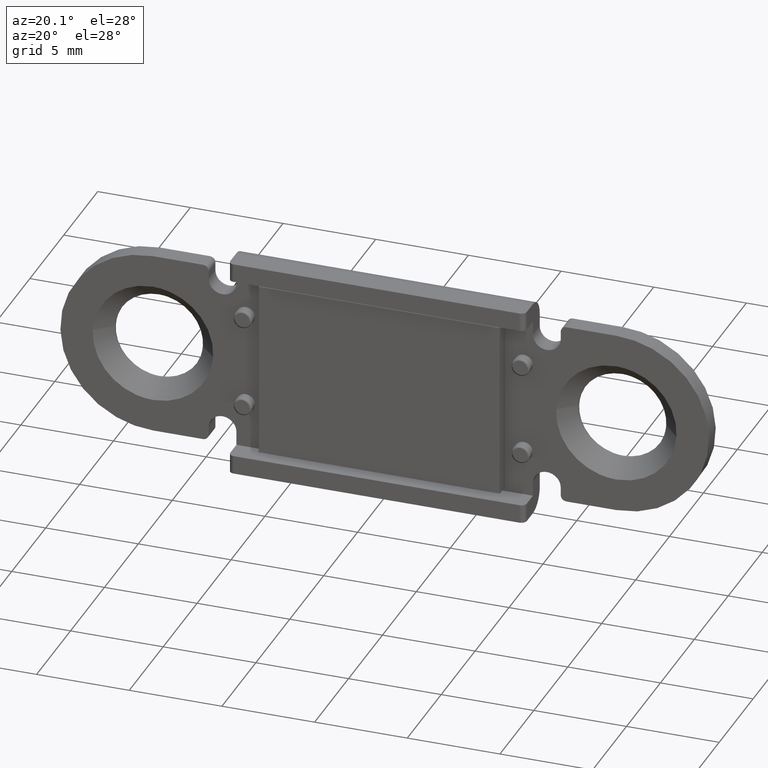
[diagram: clean part render]
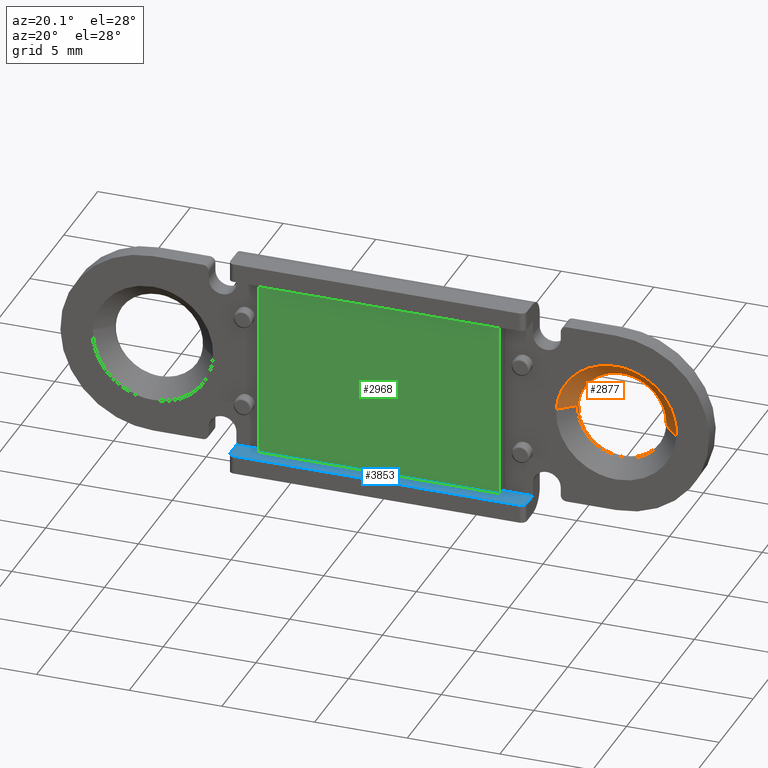
[diagram: same view with three faces highlighted in distinct colors, each labeled with its STEP entity id]
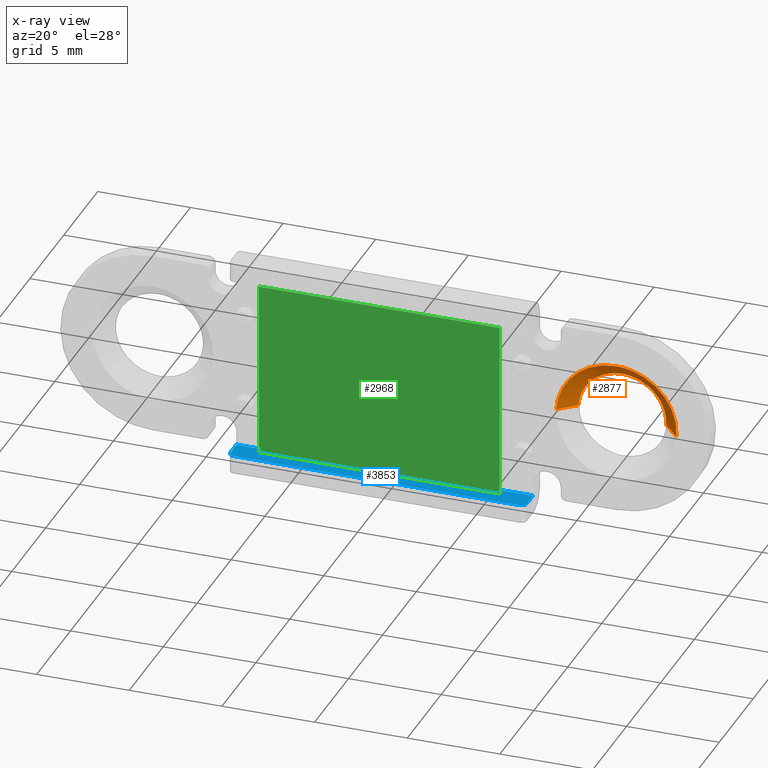
[diagram: x-ray of the same camera — body ghosted, the three highlighted faces saturated]
A machine part, auxiliary view with three faces highlighted in distinct colors.
The next image is the same camera in x-ray (body ghosted, the three faces saturated) — at least one of them is partly hidden behind the body in this view.
Their STEP definitions:

[orange] entity #2877 — the highlighted face is a freeform B-spline surface patch.
#2649=CARTESIAN_POINT('',(14.870570146248060,-0.125000000100951,-0.144990281424327));
#2650=VERTEX_POINT('',#2649);
#2656=CARTESIAN_POINT('',(12.500000000002300,-0.125000000093223,2.374999999990565));
#2657=VERTEX_POINT('',#2656);
#2658=CARTESIAN_POINT('',(14.870570146248065,-0.125000000100951,-0.144990281424327));
#2659=CARTESIAN_POINT('',(14.874999999999597,-0.125000000100840,-0.072562812834667));
#2660=CARTESIAN_POINT('',(14.874999999999490,-0.125000000100722,2.814139E-011));
#2661=CARTESIAN_POINT('',(14.874999999996074,-0.125000000096858,2.375000000004205));
#2662=CARTESIAN_POINT('',(12.500000000002300,-0.125000000093223,2.374999999990565));
#2670=(BOUNDED_CURVE()B_SPLINE_CURVE(2,(#2658,#2659,#2660,#2661,#2662),.UNSPECIFIED.,.F.,.U.)B_SPLINE_CURVE_WITH_KNOTS((3,2,3),(0.239332962237702,0.250000000000000,0.500000000000000),.UNSPECIFIED.)CURVE()GEOMETRIC_REPRESENTATION_ITEM()RATIONAL_B_SPLINE_CURVE((0.976072041664057,0.987502787898383,1.0,0.707106781186548,1.0))REPRESENTATION_ITEM(''));
#2671=EDGE_CURVE('',#2650,#2657,#2670,.T.);
#2673=CARTESIAN_POINT('',(10.129429853756539,-0.125000000100951,0.144990281424326));
#2674=VERTEX_POINT('',#2673);
#2675=CARTESIAN_POINT('',(12.500000000002300,-0.125000000093223,2.374999999990565));
#2676=CARTESIAN_POINT('',(10.265823091162083,-0.125000000097087,2.374999999976064));
#2677=CARTESIAN_POINT('',(10.129429853756537,-0.125000000100951,0.144990281424326));
#2685=(BOUNDED_CURVE()B_SPLINE_CURVE(2,(#2675,#2676,#2677),.UNSPECIFIED.,.F.,.U.)B_SPLINE_CURVE_WITH_KNOTS((3,3),(0.500000000000000,0.739332962237702),.UNSPECIFIED.)CURVE()GEOMETRIC_REPRESENTATION_ITEM()RATIONAL_B_SPLINE_CURVE((1.0,0.719603993288164,0.976072041664057))REPRESENTATION_ITEM(''));
#2686=EDGE_CURVE('',#2657,#2674,#2685,.T.);
#2811=CARTESIAN_POINT('',(14.848735947531660,-0.103125000095554,-0.143654844592527));
#2812=CARTESIAN_POINT('',(14.992390792124191,-0.103125000095554,2.205081102936837));
#2813=CARTESIAN_POINT('',(12.643654844594829,-0.103125000095554,2.348735947529363));
#2814=CARTESIAN_POINT('',(10.294918897065465,-0.103125000095554,2.492390792121890));
#2815=CARTESIAN_POINT('',(10.151264052472939,-0.103125000095554,0.143654844592527));
#2816=CARTESIAN_POINT('',(15.766318148451820,-1.022421874997611,-0.199776576204252));
#2817=CARTESIAN_POINT('',(15.966094724656083,-1.022421874997611,3.066541572245270));
#2818=CARTESIAN_POINT('',(12.699776576206551,-1.022421874997611,3.266318148449522));
#2819=CARTESIAN_POINT('',(9.433458427757030,-1.022421874997611,3.466094724653774));
#2820=CARTESIAN_POINT('',(9.233681851552777,-1.022421874997611,0.199776576204252));
#2828=(BOUNDED_SURFACE()B_SPLINE_SURFACE(2,1,((#2811,#2816),(#2812,#2817),(#2813,#2818),(#2814,#2819),(#2815,#2820)),.UNSPECIFIED.,.F.,.F.,.U.)B_SPLINE_SURFACE_WITH_KNOTS((3,2,3),(2,2),(0.0,5.421926089551428,10.843852179102861),(0.0,1.0),.UNSPECIFIED.)GEOMETRIC_REPRESENTATION_ITEM()RATIONAL_B_SPLINE_SURFACE(((1.0,1.0),(0.707106781186548,0.707106781186548),(1.0,1.0),(0.707106781186548,0.707106781186548),(1.0,1.0)))REPRESENTATION_ITEM('')SURFACE());
#2829=ORIENTED_EDGE('',*,*,#2671,.F.);
#2830=CARTESIAN_POINT('',(15.743938094774670,-1.000000000007094,-0.198407753535645));
#2831=VERTEX_POINT('',#2830);
#2832=CARTESIAN_POINT('',(14.870570146248060,-0.125000000100951,-0.144990281424327));
#2833=CARTESIAN_POINT('',(15.743938094774670,-1.000000000007094,-0.198407753535645));
#2834=QUASI_UNIFORM_CURVE('',1,(#2832,#2833),.UNSPECIFIED.,.F.,.U.);
#2835=EDGE_CURVE('',#2650,#2831,#2834,.T.);
#2836=ORIENTED_EDGE('',*,*,#2835,.T.);
#2837=CARTESIAN_POINT('',(12.500000000002300,-1.0,3.249999999897285));
#2838=VERTEX_POINT('',#2837);
#2839=CARTESIAN_POINT('',(15.743938094774677,-1.000000000007094,-0.198407753535645));
#2840=CARTESIAN_POINT('',(15.749999999906571,-1.000000000006992,-0.099296480744376));
#2841=CARTESIAN_POINT('',(15.749999999906461,-1.000000000006884,-4.203657E-013));
#2842=CARTESIAN_POINT('',(15.749999999902911,-1.000000000003337,3.249999999897080));
#2843=CARTESIAN_POINT('',(12.500000000002300,-1.0,3.249999999897285));
#2851=(BOUNDED_CURVE()B_SPLINE_CURVE(2,(#2839,#2840,#2841,#2842,#2843),.UNSPECIFIED.,.F.,.U.)B_SPLINE_CURVE_WITH_KNOTS((3,2,3),(0.239332962239139,0.250000000000000,0.500000000000000),.UNSPECIFIED.)CURVE()GEOMETRIC_REPRESENTATION_ITEM()RATIONAL_B_SPLINE_CURVE((0.976072041667137,0.987502787900067,1.0,0.707106781186547,1.0))REPRESENTATION_ITEM(''));
#2852=EDGE_CURVE('',#2831,#2838,#2851,.T.);
#2853=ORIENTED_EDGE('',*,*,#2852,.T.);
#2854=CARTESIAN_POINT('',(9.256061905229931,-1.000000000007093,0.198407753535645));
#2855=VERTEX_POINT('',#2854);
#2856=CARTESIAN_POINT('',(12.500000000002300,-1.0,3.249999999897285));
#2857=CARTESIAN_POINT('',(9.442705282702109,-1.000000000003547,3.249999999897500));
#2858=CARTESIAN_POINT('',(9.256061905229931,-1.000000000007093,0.198407753535645));
#2866=(BOUNDED_CURVE()B_SPLINE_CURVE(2,(#2856,#2857,#2858),.UNSPECIFIED.,.F.,.U.)B_SPLINE_CURVE_WITH_KNOTS((3,3),(0.500000000000000,0.739332962239139),.UNSPECIFIED.)CURVE()GEOMETRIC_REPRESENTATION_ITEM()RATIONAL_B_SPLINE_CURVE((1.0,0.719603993286481,0.976072041667137))REPRESENTATION_ITEM(''));
#2867=EDGE_CURVE('',#2838,#2855,#2866,.T.);
#2868=ORIENTED_EDGE('',*,*,#2867,.T.);
#2869=CARTESIAN_POINT('',(10.129429853756539,-0.125000000100951,0.144990281424326));
#2870=CARTESIAN_POINT('',(9.256061905229931,-1.000000000007093,0.198407753535645));
#2871=QUASI_UNIFORM_CURVE('',1,(#2869,#2870),.UNSPECIFIED.,.F.,.U.);
#2872=EDGE_CURVE('',#2674,#2855,#2871,.T.);
#2873=ORIENTED_EDGE('',*,*,#2872,.F.);
#2874=ORIENTED_EDGE('',*,*,#2686,.F.);
#2875=EDGE_LOOP('',(#2829,#2836,#2853,#2868,#2873,#2874));
#2876=FACE_OUTER_BOUND('',#2875,.T.);
#2877=ADVANCED_FACE('',(#2876),#2828,.F.);

[blue] entity #3853 — the highlighted face is a freeform B-spline surface patch.
#3212=CARTESIAN_POINT('',(-8.0,-1.0,-5.0));
#3213=VERTEX_POINT('',#3212);
#3219=CARTESIAN_POINT('',(8.0,-1.0,-5.0));
#3220=VERTEX_POINT('',#3219);
#3221=CARTESIAN_POINT('',(-8.0,-1.0,-5.0));
#3222=CARTESIAN_POINT('',(8.0,-1.0,-5.0));
#3223=QUASI_UNIFORM_CURVE('',1,(#3221,#3222),.UNSPECIFIED.,.F.,.U.);
#3224=EDGE_CURVE('',#3213,#3220,#3223,.T.);
#3679=CARTESIAN_POINT('',(8.0,-1.900000000000125,-5.0));
#3680=VERTEX_POINT('',#3679);
#3686=CARTESIAN_POINT('',(7.700000000000000,-2.200000000000090,-5.0));
#3687=VERTEX_POINT('',#3686);
#3688=CARTESIAN_POINT('',(7.700000000000000,-2.200000000000105,-5.0));
#3689=CARTESIAN_POINT('',(8.0,-2.200000000000105,-4.999999999999999));
#3690=CARTESIAN_POINT('',(8.0,-1.900000000000105,-5.0));
#3698=(BOUNDED_CURVE()B_SPLINE_CURVE(2,(#3688,#3689,#3690),.UNSPECIFIED.,.F.,.U.)CURVE()GEOMETRIC_REPRESENTATION_ITEM()QUASI_UNIFORM_CURVE()RATIONAL_B_SPLINE_CURVE((1.0,0.707106781186547,1.0))REPRESENTATION_ITEM(''));
#3699=EDGE_CURVE('',#3687,#3680,#3698,.T.);
#3723=CARTESIAN_POINT('',(-8.0,-1.900000000000125,-5.0));
#3724=VERTEX_POINT('',#3723);
#3725=CARTESIAN_POINT('',(-7.700000000000000,-2.200000000000090,-5.0));
#3726=VERTEX_POINT('',#3725);
#3727=CARTESIAN_POINT('',(-8.0,-1.900000000000105,-5.0));
#3728=CARTESIAN_POINT('',(-8.0,-2.200000000000105,-4.999999999999999));
#3729=CARTESIAN_POINT('',(-7.700000000000000,-2.200000000000105,-5.0));
#3737=(BOUNDED_CURVE()B_SPLINE_CURVE(2,(#3727,#3728,#3729),.UNSPECIFIED.,.F.,.U.)CURVE()GEOMETRIC_REPRESENTATION_ITEM()QUASI_UNIFORM_CURVE()RATIONAL_B_SPLINE_CURVE((1.0,0.707106781186547,1.0))REPRESENTATION_ITEM(''));
#3738=EDGE_CURVE('',#3724,#3726,#3737,.T.);
#3817=CARTESIAN_POINT('',(7.700000000000000,-2.200000000000090,-5.0));
#3818=CARTESIAN_POINT('',(-7.700000000000000,-2.200000000000090,-5.0));
#3819=QUASI_UNIFORM_CURVE('',1,(#3817,#3818),.UNSPECIFIED.,.F.,.U.);
#3820=EDGE_CURVE('',#3687,#3726,#3819,.T.);
#3832=CARTESIAN_POINT('',(8.799199968988896,-2.259939997674262,-5.0));
#3833=CARTESIAN_POINT('',(-8.799200398142338,-2.259939997674262,-5.0));
#3834=CARTESIAN_POINT('',(8.799199968988896,-0.940059970139320,-5.0));
#3835=CARTESIAN_POINT('',(-8.799200398142338,-0.940059970139320,-5.0));
#3836=B_SPLINE_SURFACE_WITH_KNOTS('',1,1,((#3832,#3834),(#3833,#3835)),.UNSPECIFIED.,.F.,.F.,.U.,(2,2),(2,2),(0.0,17.598400367131230),(0.041708334948495,0.958291687403247),.UNSPECIFIED.);
#3837=CARTESIAN_POINT('',(-8.0,-1.900000000000125,-5.0));
#3838=CARTESIAN_POINT('',(-8.0,-1.0,-5.0));
#3839=QUASI_UNIFORM_CURVE('',1,(#3837,#3838),.UNSPECIFIED.,.F.,.U.);
#3840=EDGE_CURVE('',#3724,#3213,#3839,.T.);
#3841=ORIENTED_EDGE('',*,*,#3840,.F.);
#3842=ORIENTED_EDGE('',*,*,#3738,.T.);
#3843=ORIENTED_EDGE('',*,*,#3820,.F.);
#3844=ORIENTED_EDGE('',*,*,#3699,.T.);
#3845=CARTESIAN_POINT('',(8.0,-1.900000000000125,-5.0));
#3846=CARTESIAN_POINT('',(8.0,-1.0,-5.0));
#3847=QUASI_UNIFORM_CURVE('',1,(#3845,#3846),.UNSPECIFIED.,.F.,.U.);
#3848=EDGE_CURVE('',#3680,#3220,#3847,.T.);
#3849=ORIENTED_EDGE('',*,*,#3848,.T.);
#3850=ORIENTED_EDGE('',*,*,#3224,.F.);
#3851=EDGE_LOOP('',(#3841,#3842,#3843,#3844,#3849,#3850));
#3852=FACE_OUTER_BOUND('',#3851,.T.);
#3853=ADVANCED_FACE('',(#3852),#3836,.F.);

[green] entity #2968 — the highlighted face is a freeform B-spline surface patch.
#2933=CARTESIAN_POINT('',(-7.149349974803478,-1.800000000000000,-5.224524981587156));
#2934=CARTESIAN_POINT('',(7.149350323490650,-1.800000000000000,-5.224524981587156));
#2935=CARTESIAN_POINT('',(-7.149349974803478,-1.800000000000000,5.224525236397013));
#2936=CARTESIAN_POINT('',(7.149350323490651,-1.800000000000000,5.224525236397013));
#2937=B_SPLINE_SURFACE_WITH_KNOTS('',1,1,((#2933,#2935),(#2934,#2936)),.UNSPECIFIED.,.F.,.F.,.U.,(2,2),(2,2),(0.0,14.298700298294129),(0.0,10.449050217984171),.UNSPECIFIED.);
#2938=CARTESIAN_POINT('',(6.500000000000000,-1.800000000000025,-4.750000000000000));
#2939=VERTEX_POINT('',#2938);
#2940=CARTESIAN_POINT('',(6.500000000000000,-1.800000000000025,4.750000000000000));
#2941=VERTEX_POINT('',#2940);
#2942=CARTESIAN_POINT('',(6.500000000000000,-1.800000000000025,-4.750000000000000));
#2943=CARTESIAN_POINT('',(6.500000000000000,-1.800000000000025,4.750000000000000));
#2944=QUASI_UNIFORM_CURVE('',1,(#2942,#2943),.UNSPECIFIED.,.F.,.U.);
#2945=EDGE_CURVE('',#2939,#2941,#2944,.T.);
#2946=ORIENTED_EDGE('',*,*,#2945,.T.);
#2947=CARTESIAN_POINT('',(-6.500000000000000,-1.800000000000025,4.750000000000000));
#2948=VERTEX_POINT('',#2947);
#2949=CARTESIAN_POINT('',(6.500000000000000,-1.800000000000025,4.750000000000000));
#2950=CARTESIAN_POINT('',(-6.500000000000000,-1.800000000000025,4.750000000000000));
#2951=QUASI_UNIFORM_CURVE('',1,(#2949,#2950),.UNSPECIFIED.,.F.,.U.);
#2952=EDGE_CURVE('',#2941,#2948,#2951,.T.);
#2953=ORIENTED_EDGE('',*,*,#2952,.T.);
#2954=CARTESIAN_POINT('',(-6.500000000000000,-1.800000000000025,-4.750000000000000));
#2955=VERTEX_POINT('',#2954);
#2956=CARTESIAN_POINT('',(-6.500000000000000,-1.800000000000025,4.750000000000000));
#2957=CARTESIAN_POINT('',(-6.500000000000000,-1.800000000000025,-4.750000000000000));
#2958=QUASI_UNIFORM_CURVE('',1,(#2956,#2957),.UNSPECIFIED.,.F.,.U.);
#2959=EDGE_CURVE('',#2948,#2955,#2958,.T.);
#2960=ORIENTED_EDGE('',*,*,#2959,.T.);
#2961=CARTESIAN_POINT('',(-6.500000000000000,-1.800000000000025,-4.750000000000000));
#2962=CARTESIAN_POINT('',(6.500000000000000,-1.800000000000025,-4.750000000000000));
#2963=QUASI_UNIFORM_CURVE('',1,(#2961,#2962),.UNSPECIFIED.,.F.,.U.);
#2964=EDGE_CURVE('',#2955,#2939,#2963,.T.);
#2965=ORIENTED_EDGE('',*,*,#2964,.T.);
#2966=EDGE_LOOP('',(#2946,#2953,#2960,#2965));
#2967=FACE_OUTER_BOUND('',#2966,.T.);
#2968=ADVANCED_FACE('',(#2967),#2937,.T.);